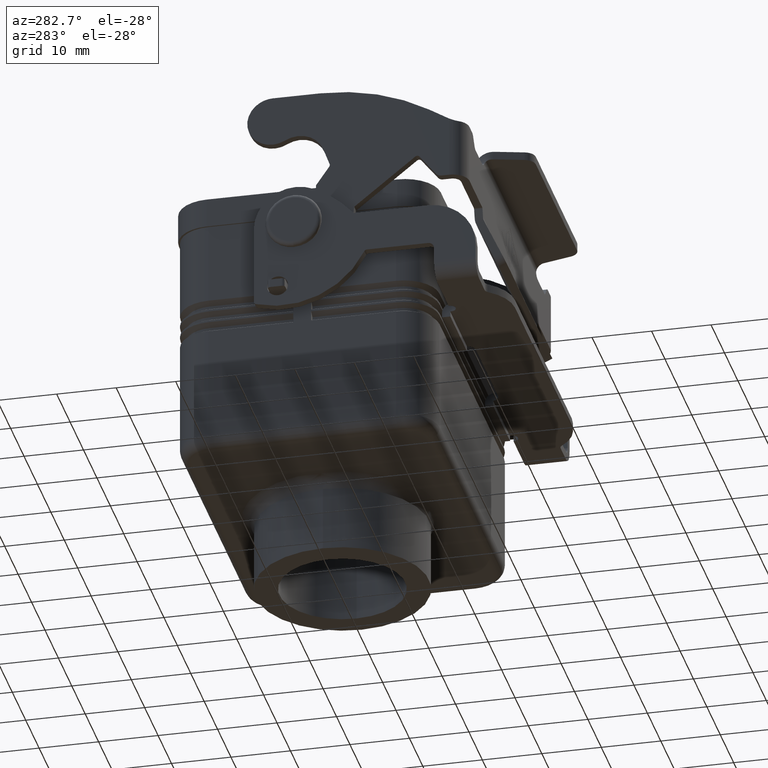
[diagram: clean part render]
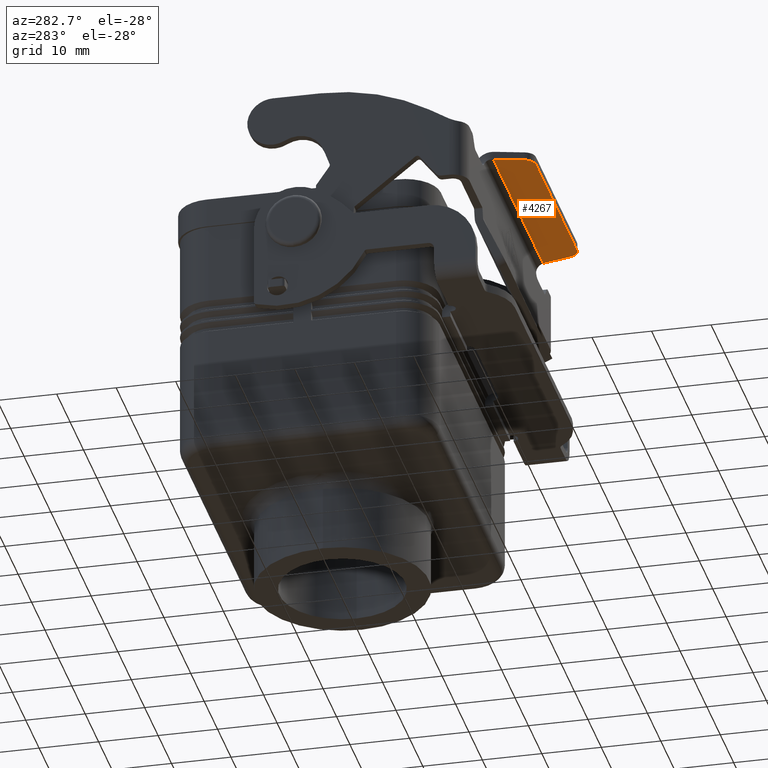
[diagram: same view with one face highlighted and labeled with its STEP entity id]
A machine part, auxiliary view. The second image highlights one B-rep face of the part: STEP entity #4267.
In plain terms, the highlighted face is a freeform B-spline surface patch.
Its self-contained STEP definition (entity closure, byte-faithful):
#2661=CARTESIAN_POINT('',(-18.622213074482190,-29.566637302590777,17.177622637585799));
#2662=VERTEX_POINT('',#2661);
#3903=CARTESIAN_POINT('',(-17.300077967749793,-34.500912695386560,17.177622637585799));
#3904=VERTEX_POINT('',#3903);
#3911=CARTESIAN_POINT('',(-15.368226315171665,-35.983274605181535,17.177622637585802));
#3912=VERTEX_POINT('',#3911);
#3913=CARTESIAN_POINT('',(-15.368226315171666,-33.983274605181528,17.177622637585802));
#3914=DIRECTION('',(-1.410929E-015,-3.780572E-016,1.000000000000000));
#3915=DIRECTION('',(-0.965925826289069,-0.258819045102520,-1.460701E-015));
#3916=AXIS2_PLACEMENT_3D('',#3913,#3914,#3915);
#3917=CIRCLE('',#3916,2.0);
#3918=EDGE_CURVE('',#3904,#3912,#3917,.T.);
#3936=CARTESIAN_POINT('',(-18.622213074482190,-29.566637302590777,17.177622637585799));
#3937=DIRECTION('',(0.258819045102522,-0.965925826289068,0.0));
#3938=VECTOR('',#3937,5.108337781745082);
#3939=LINE('',#3936,#3938);
#3940=EDGE_CURVE('',#2662,#3904,#3939,.T.);
#4208=CARTESIAN_POINT('',(15.368226315171668,-35.983274605181521,17.177622637585802));
#4209=VERTEX_POINT('',#4208);
#4210=CARTESIAN_POINT('',(15.368226315171668,-35.983274605181521,17.177622637585802));
#4211=DIRECTION('',(-1.0,0.0,0.0));
#4212=VECTOR('',#4211,30.736452630343333);
#4213=LINE('',#4210,#4212);
#4214=EDGE_CURVE('',#4209,#3912,#4213,.T.);
#4234=CARTESIAN_POINT('',(18.622213074482190,-35.983274605181535,17.177622637585792));
#4235=CARTESIAN_POINT('',(18.622213074482186,-29.566637302590745,17.177622637585792));
#4236=CARTESIAN_POINT('',(-18.622213074482190,-35.983274605181563,17.177622637585788));
#4237=CARTESIAN_POINT('',(-18.622213074482193,-29.566637302590777,17.177622637585792));
#4238=B_SPLINE_SURFACE_WITH_KNOTS('',1,1,((#4234,#4236),(#4235,#4237)),.UNSPECIFIED.,.F.,.F.,.U.,(2,2),(2,2),(0.0,6.416637302590790),(0.0,37.244426148964379),.UNSPECIFIED.);
#4239=CARTESIAN_POINT('',(18.622213074482179,-29.566637302590770,17.177622637585806));
#4240=VERTEX_POINT('',#4239);
#4241=CARTESIAN_POINT('',(-18.622213074482190,-29.566637302590777,17.177622637585799));
#4242=DIRECTION('',(1.0,0.0,0.0));
#4243=VECTOR('',#4242,37.244426148964365);
#4244=LINE('',#4241,#4243);
#4245=EDGE_CURVE('',#2662,#4240,#4244,.T.);
#4246=ORIENTED_EDGE('',*,*,#4245,.T.);
#4247=CARTESIAN_POINT('',(17.300077967749793,-34.500912695386546,17.177622637585806));
#4248=VERTEX_POINT('',#4247);
#4249=CARTESIAN_POINT('',(18.622213074482179,-29.566637302590770,17.177622637585806));
#4250=DIRECTION('',(-0.258819045102520,-0.965925826289069,0.0));
#4251=VECTOR('',#4250,5.108337781745072);
#4252=LINE('',#4249,#4251);
#4253=EDGE_CURVE('',#4240,#4248,#4252,.T.);
#4254=ORIENTED_EDGE('',*,*,#4253,.T.);
#4255=CARTESIAN_POINT('',(15.368226315171668,-33.983274605181514,17.177622637585806));
#4256=DIRECTION('',(5.761569E-017,-1.543808E-017,-1.000000000000000));
#4257=DIRECTION('',(0.965925826289069,-0.258819045102519,5.964815E-017));
#4258=AXIS2_PLACEMENT_3D('',#4255,#4256,#4257);
#4259=CIRCLE('',#4258,2.0);
#4260=EDGE_CURVE('',#4248,#4209,#4259,.T.);
#4261=ORIENTED_EDGE('',*,*,#4260,.T.);
#4262=ORIENTED_EDGE('',*,*,#4214,.T.);
#4263=ORIENTED_EDGE('',*,*,#3918,.F.);
#4264=ORIENTED_EDGE('',*,*,#3940,.F.);
#4265=EDGE_LOOP('',(#4246,#4254,#4261,#4262,#4263,#4264));
#4266=FACE_OUTER_BOUND('',#4265,.T.);
#4267=ADVANCED_FACE('',(#4266),#4238,.F.);